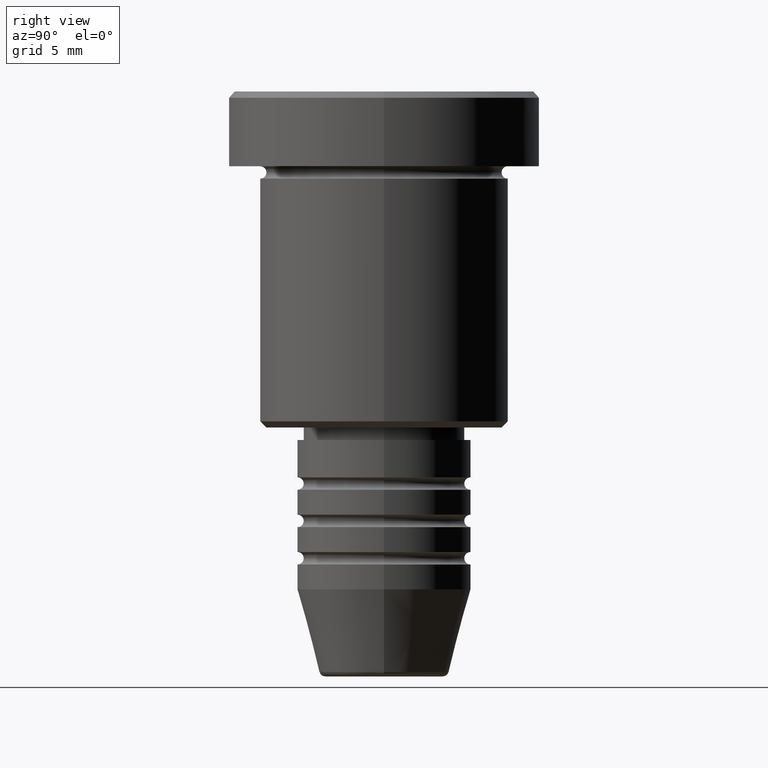
[diagram: clean part render]
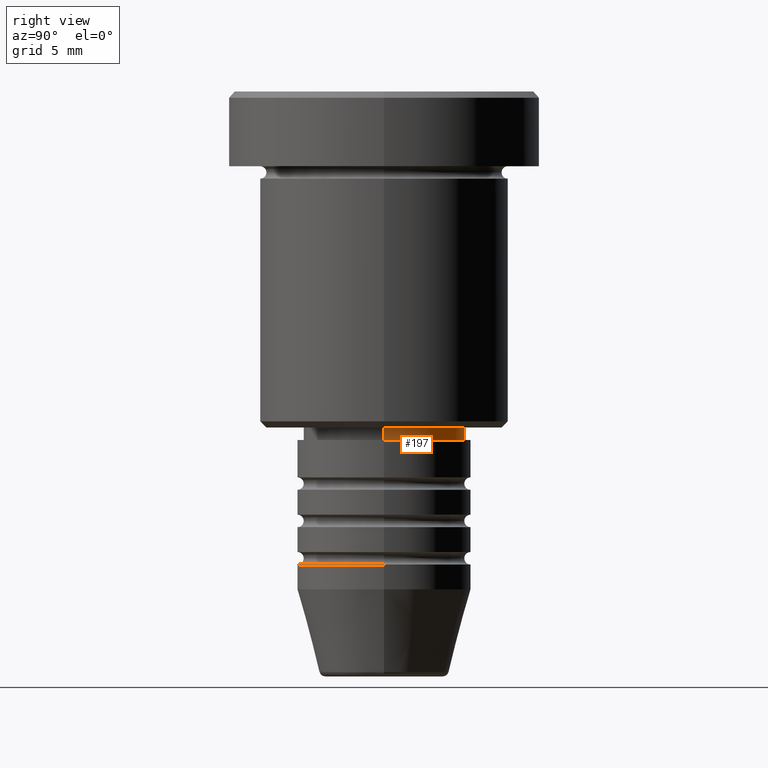
[diagram: same view with one face highlighted and labeled with its STEP entity id]
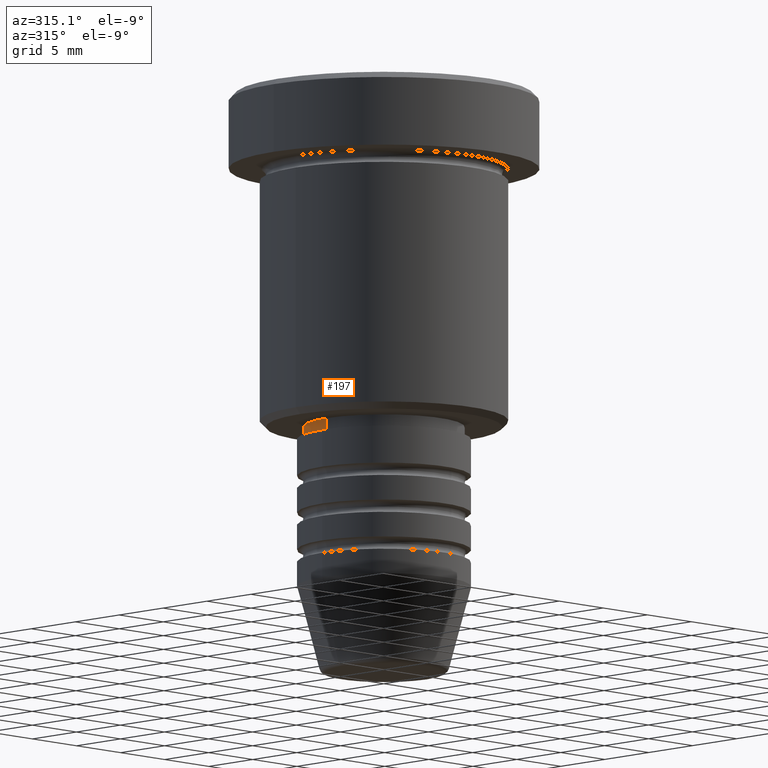
[diagram: same view with one face highlighted and labeled with its STEP entity id]
A machine part, right view. The second image highlights one B-rep face of the part: STEP entity #197.
A second angle (auxiliary view) of the same face is appended — the face is thin or edge-on in the first view.
In plain terms, the highlighted cylindrical surface (partial cylindrical patch) has radius 6.5 mm, axis along (-0, -0, 1).
Its self-contained STEP definition (entity closure, byte-faithful):
#79 = VERTEX_POINT ( 'NONE', #516 ) ;
#106 = CARTESIAN_POINT ( 'NONE',  ( -6.500000000000000000, 7.960204194457795477E-16, 0.000000000000000000 ) ) ;
#147 = CARTESIAN_POINT ( 'NONE',  ( 6.500000000000000000, 0.000000000000000000, -28.00000000000001066 ) ) ;
#197 = ADVANCED_FACE ( 'NONE', ( #201 ), #657, .T. ) ;
#201 = FACE_OUTER_BOUND ( 'NONE', #1030, .T. ) ;
#216 = DIRECTION ( 'NONE',  ( -0.000000000000000000, -0.000000000000000000, 1.000000000000000000 ) ) ;
#235 = VERTEX_POINT ( 'NONE', #1052 ) ;
#291 = DIRECTION ( 'NONE',  ( -0.000000000000000000, -0.000000000000000000, 1.000000000000000000 ) ) ;
#298 = AXIS2_PLACEMENT_3D ( 'NONE', #554, #216, #377 ) ;
#361 = VECTOR ( 'NONE', #802, 1000.000000000000000 ) ;
#364 = VERTEX_POINT ( 'NONE', #147 ) ;
#371 = CARTESIAN_POINT ( 'NONE',  ( -6.500000000000000000, 7.960204194457795477E-16, -27.00000000000000000 ) ) ;
#377 = DIRECTION ( 'NONE',  ( 1.000000000000000000, 0.000000000000000000, 0.000000000000000000 ) ) ;
#386 = DIRECTION ( 'NONE',  ( -0.000000000000000000, -0.000000000000000000, 1.000000000000000000 ) ) ;
#412 = ORIENTED_EDGE ( 'NONE', *, *, #479, .T. ) ;
#440 = ORIENTED_EDGE ( 'NONE', *, *, #511, .T. ) ;
#459 = LINE ( 'NONE', #106, #561 ) ;
#467 = CIRCLE ( 'NONE', #854, 6.500000000000000000 ) ;
#479 = EDGE_CURVE ( 'NONE', #364, #79, #467, .T. ) ;
#501 = LINE ( 'NONE', #873, #361 ) ;
#511 = EDGE_CURVE ( 'NONE', #79, #569, #459, .T. ) ;
#514 = EDGE_CURVE ( 'NONE', #235, #569, #540, .T. ) ;
#516 = CARTESIAN_POINT ( 'NONE',  ( -6.500000000000000000, 7.960204194457795477E-16, -28.00000000000001066 ) ) ;
#540 = CIRCLE ( 'NONE', #298, 6.500000000000000000 ) ;
#554 = CARTESIAN_POINT ( 'NONE',  ( 0.000000000000000000, 0.000000000000000000, -27.00000000000000000 ) ) ;
#561 = VECTOR ( 'NONE', #291, 1000.000000000000000 ) ;
#569 = VERTEX_POINT ( 'NONE', #371 ) ;
#635 = ORIENTED_EDGE ( 'NONE', *, *, #639, .F. ) ;
#639 = EDGE_CURVE ( 'NONE', #364, #235, #501, .T. ) ;
#652 = CARTESIAN_POINT ( 'NONE',  ( 0.000000000000000000, 0.000000000000000000, 0.000000000000000000 ) ) ;
#657 = CYLINDRICAL_SURFACE ( 'NONE', #719, 6.500000000000000000 ) ;
#719 = AXIS2_PLACEMENT_3D ( 'NONE', #652, #386, #1011 ) ;
#802 = DIRECTION ( 'NONE',  ( -0.000000000000000000, -0.000000000000000000, 1.000000000000000000 ) ) ;
#817 = DIRECTION ( 'NONE',  ( -0.000000000000000000, -0.000000000000000000, 1.000000000000000000 ) ) ;
#854 = AXIS2_PLACEMENT_3D ( 'NONE', #992, #817, #981 ) ;
#873 = CARTESIAN_POINT ( 'NONE',  ( 6.500000000000000000, 0.000000000000000000, 0.000000000000000000 ) ) ;
#981 = DIRECTION ( 'NONE',  ( 1.000000000000000000, 0.000000000000000000, 0.000000000000000000 ) ) ;
#992 = CARTESIAN_POINT ( 'NONE',  ( 0.000000000000000000, 0.000000000000000000, -28.00000000000001066 ) ) ;
#1011 = DIRECTION ( 'NONE',  ( 1.000000000000000000, 0.000000000000000000, 0.000000000000000000 ) ) ;
#1030 = EDGE_LOOP ( 'NONE', ( #412, #440, #1064, #635 ) ) ;
#1052 = CARTESIAN_POINT ( 'NONE',  ( 6.500000000000000000, 0.000000000000000000, -27.00000000000000000 ) ) ;
#1064 = ORIENTED_EDGE ( 'NONE', *, *, #514, .F. ) ;